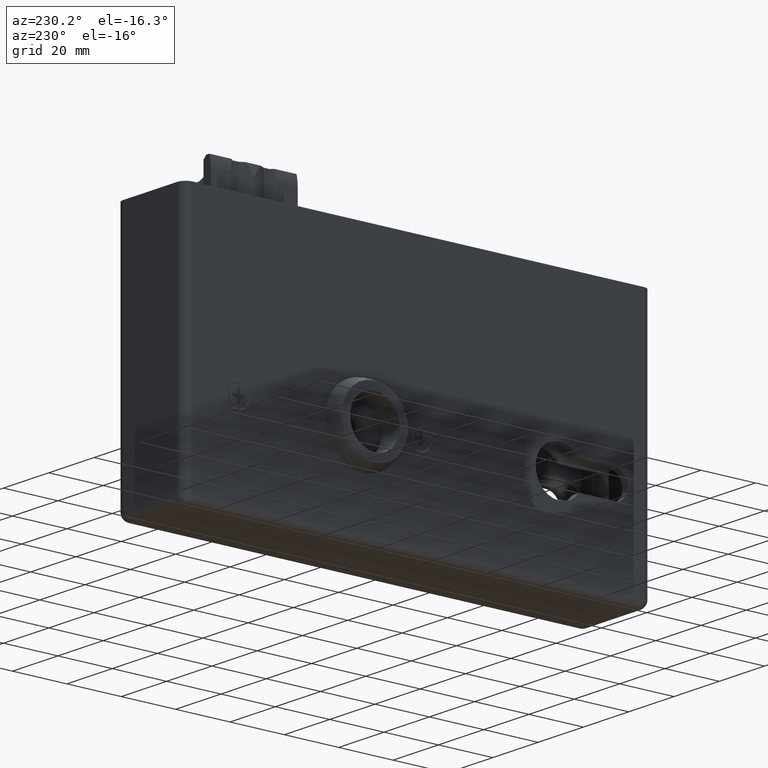
[diagram: clean part render]
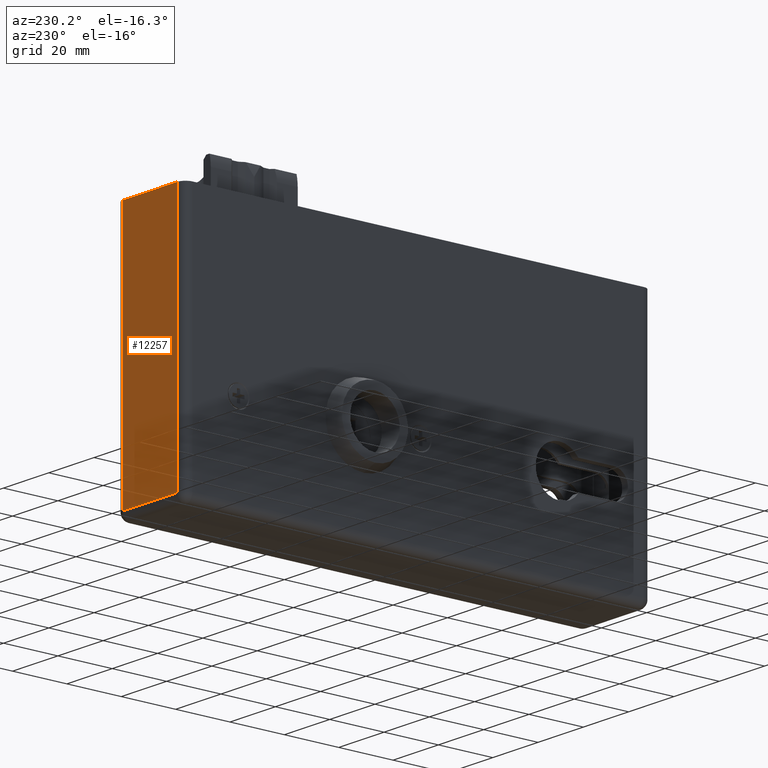
[diagram: same view with one face highlighted and labeled with its STEP entity id]
A machine part, auxiliary view. The second image highlights one B-rep face of the part: STEP entity #12257.
In plain terms, the highlighted planar face has unit normal (0, -1, 0).
Its self-contained STEP definition (entity closure, byte-faithful):
#817 = VECTOR ( 'NONE', #17551, 1000.000000000000000 ) ;
#1674 = EDGE_CURVE ( 'NONE', #3514, #24096, #16199, .T. ) ;
#2139 = CARTESIAN_POINT ( 'NONE',  ( 12.00000000000000000, 85.99999999999998579, 47.25000000000000000 ) ) ;
#3437 = ORIENTED_EDGE ( 'NONE', *, *, #7817, .T. ) ;
#3514 = VERTEX_POINT ( 'NONE', #22751 ) ;
#4502 = ORIENTED_EDGE ( 'NONE', *, *, #23023, .T. ) ;
#4670 = VERTEX_POINT ( 'NONE', #2139 ) ;
#6015 = VERTEX_POINT ( 'NONE', #15608 ) ;
#6027 = VECTOR ( 'NONE', #20986, 1000.000000000000000 ) ;
#7711 = DIRECTION ( 'NONE',  ( 0.000000000000000000, -1.000000000000000000, 0.000000000000000000 ) ) ;
#7817 = EDGE_CURVE ( 'NONE', #4670, #3514, #18119, .T. ) ;
#7860 = VECTOR ( 'NONE', #18079, 1000.000000000000000 ) ;
#9268 = CARTESIAN_POINT ( 'NONE',  ( -12.00000000000000000, 85.99999999999998579, 47.25000000000000000 ) ) ;
#9892 = DIRECTION ( 'NONE',  ( 0.000000000000000000, -0.000000000000000000, -1.000000000000000000 ) ) ;
#10037 = CARTESIAN_POINT ( 'NONE',  ( -12.00000000000000000, 85.99999999999998579, -44.25000000000000000 ) ) ;
#10906 = AXIS2_PLACEMENT_3D ( 'NONE', #23404, #7711, #9892 ) ;
#11670 = PLANE ( 'NONE',  #10906 ) ;
#12257 = ADVANCED_FACE ( 'NONE', ( #19749 ), #11670, .F. ) ;
#13030 = CARTESIAN_POINT ( 'NONE',  ( 15.00000000000000000, 85.99999999999998579, 47.25000000000000000 ) ) ;
#13658 = ORIENTED_EDGE ( 'NONE', *, *, #19650, .F. ) ;
#15078 = ORIENTED_EDGE ( 'NONE', *, *, #1674, .T. ) ;
#15531 = VECTOR ( 'NONE', #24517, 1000.000000000000000 ) ;
#15608 = CARTESIAN_POINT ( 'NONE',  ( -12.00000000000000000, 85.99999999999998579, 47.25000000000000000 ) ) ;
#16199 = LINE ( 'NONE', #23060, #817 ) ;
#17551 = DIRECTION ( 'NONE',  ( -1.000000000000000000, 0.000000000000000000, 0.000000000000000000 ) ) ;
#18079 = DIRECTION ( 'NONE',  ( -0.000000000000000000, -0.000000000000000000, -1.000000000000000000 ) ) ;
#18119 = LINE ( 'NONE', #23660, #7860 ) ;
#19650 = EDGE_CURVE ( 'NONE', #4670, #6015, #20664, .T. ) ;
#19749 = FACE_OUTER_BOUND ( 'NONE', #24516, .T. ) ;
#20664 = LINE ( 'NONE', #13030, #15531 ) ;
#20986 = DIRECTION ( 'NONE',  ( -0.000000000000000000, 0.000000000000000000, 1.000000000000000000 ) ) ;
#22751 = CARTESIAN_POINT ( 'NONE',  ( 12.00000000000000000, 85.99999999999998579, -44.25000000000000000 ) ) ;
#23023 = EDGE_CURVE ( 'NONE', #24096, #6015, #23875, .T. ) ;
#23060 = CARTESIAN_POINT ( 'NONE',  ( 15.00000000000000000, 85.99999999999998579, -44.25000000000000000 ) ) ;
#23404 = CARTESIAN_POINT ( 'NONE',  ( 15.00000000000000000, 85.99999999999998579, 47.25000000000000000 ) ) ;
#23660 = CARTESIAN_POINT ( 'NONE',  ( 12.00000000000000000, 85.99999999999998579, -47.25000000000000000 ) ) ;
#23875 = LINE ( 'NONE', #9268, #6027 ) ;
#24096 = VERTEX_POINT ( 'NONE', #10037 ) ;
#24516 = EDGE_LOOP ( 'NONE', ( #15078, #4502, #13658, #3437 ) ) ;
#24517 = DIRECTION ( 'NONE',  ( -1.000000000000000000, -0.000000000000000000, -0.000000000000000000 ) ) ;